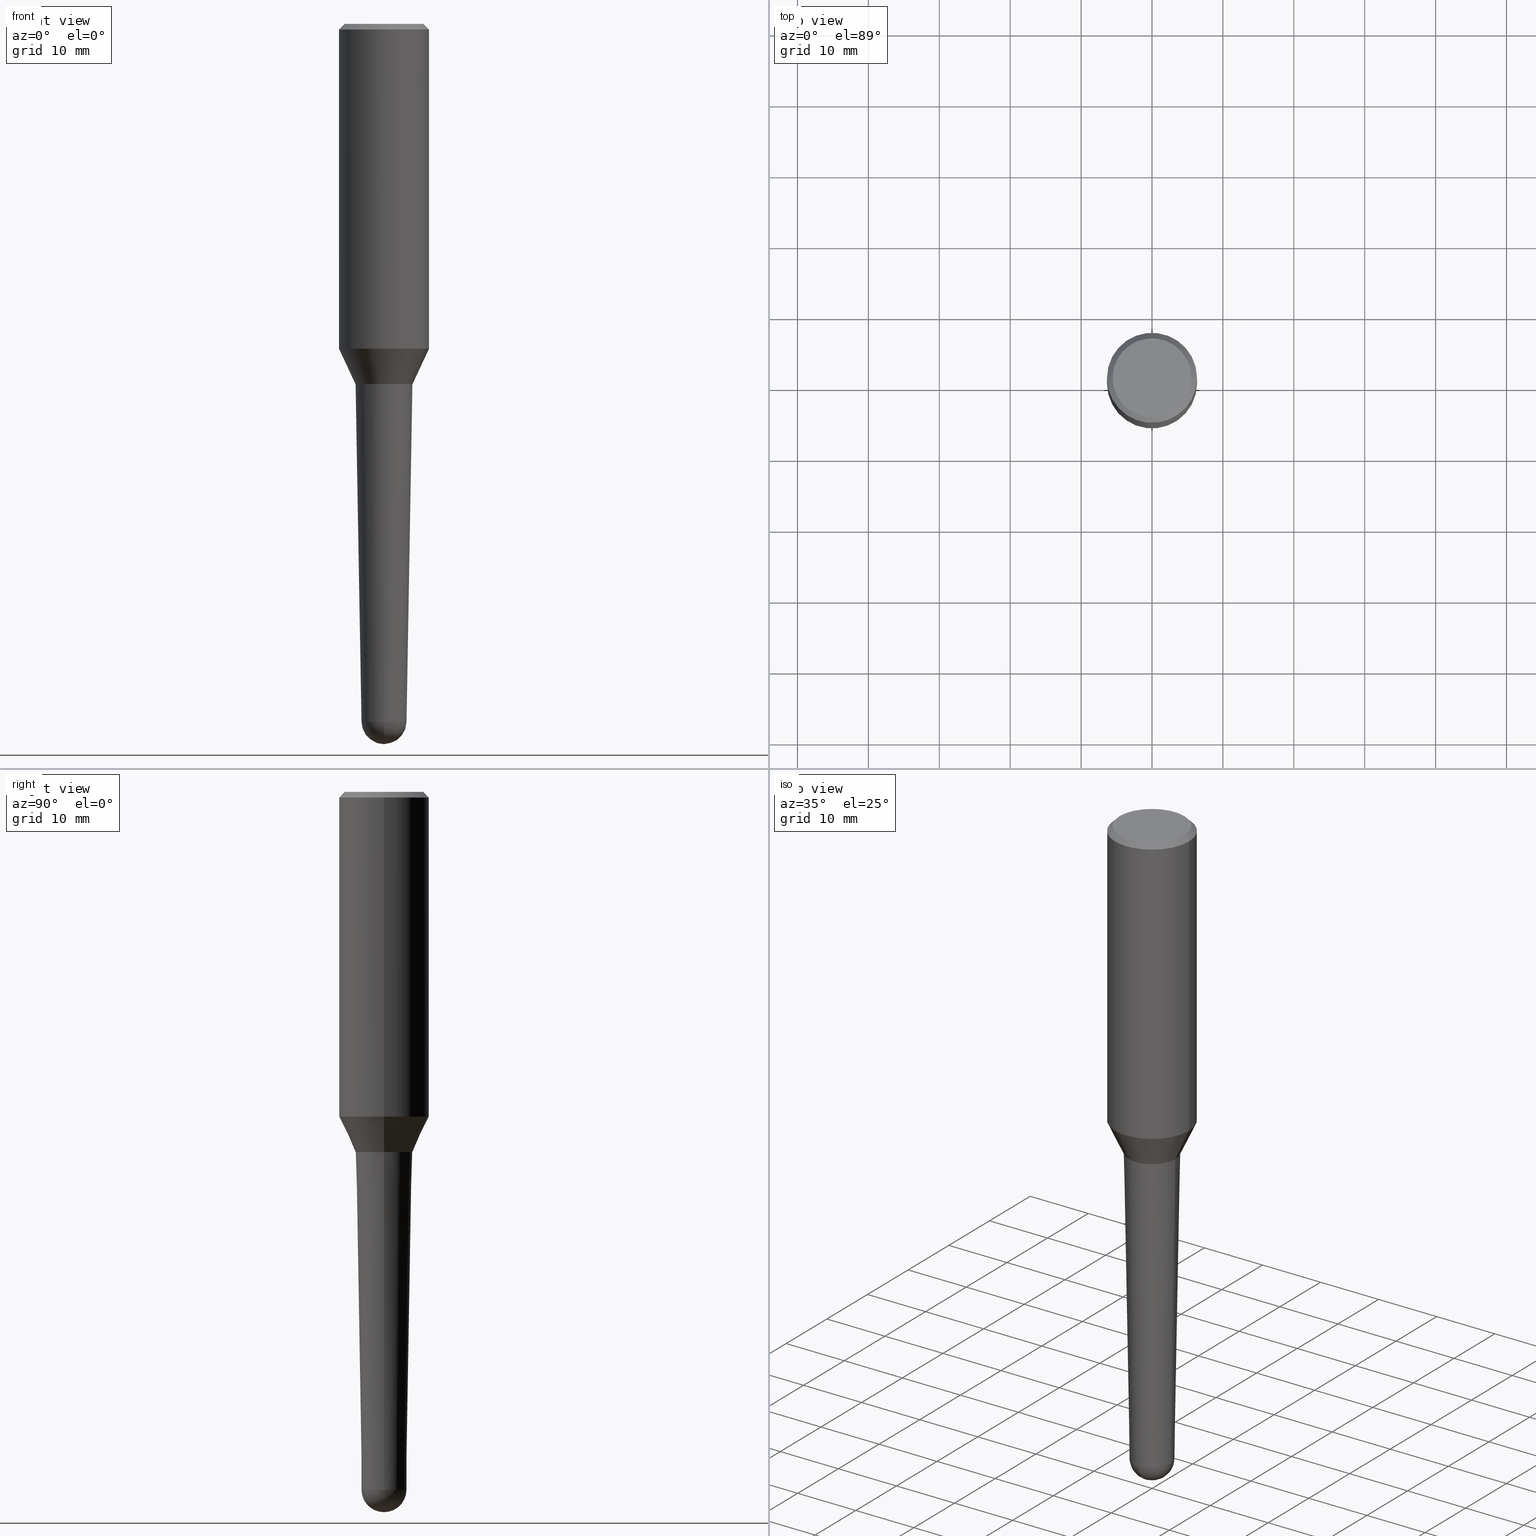
[diagram: canonical four-view strip — front | top / right | iso, engineering-drawing reading convention]
A machine part, canonical four-view strip (front | top / right | iso — engineering-drawing reading convention). The complete STEP part file that produces these views, byte-faithful:
ISO-10303-21;
HEADER;
FILE_DESCRIPTION (( 'STEP AP203' ),
    '1' );
FILE_NAME ('32431.STEP',
    '2024-03-04T15:23:43',
    ( '' ),
    ( '' ),
    'SwSTEP 2.0',
    'SolidWorks 2023',
    '' );
FILE_SCHEMA (( 'CONFIG_CONTROL_DESIGN' ));
ENDSEC;

DATA;
#1 = CALENDAR_DATE ( 2024, 4, 3 ) ;
#2 = DIRECTION ( 'NONE',  ( -2.445468806185136597E-29, 3.491481338843145583E-15, 1.000000000000000000 ) ) ;
#3 = AXIS2_PLACEMENT_3D ( 'NONE', #275, #316, #350 ) ;
#4 = PERSON_AND_ORGANIZATION_ROLE ( 'design_owner' ) ;
#5 = APPROVAL_PERSON_ORGANIZATION ( #67, #357, #293 ) ;
#6 = DIRECTION ( 'NONE',  ( 1.000000000000000000, -6.982962677686265133E-15, 0.000000000000000000 ) ) ;
#7 = ADVANCED_FACE ( 'NONE', ( #146 ), #367, .T. ) ;
#8 = DATE_TIME_ROLE ( 'creation_date' ) ;
#9 = DIRECTION ( 'NONE',  ( 1.000000000000000000, -6.982962677686266711E-15, 4.852736867747363965E-29 ) ) ;
#10 = ADVANCED_FACE ( 'NONE', ( #323 ), #60, .T. ) ;
#11 = CARTESIAN_POINT ( 'NONE',  ( -0.2500000000000000000, 1.636631877582718169E-15, -0.03125000000000005551 ) ) ;
#12 = CARTESIAN_POINT ( 'NONE',  ( 4.890937612370273194E-29, -6.982962677686291165E-15, -2.000000000000000000 ) ) ;
#13 = AXIS2_PLACEMENT_3D ( 'NONE', #308, #331, #366 ) ;
#14 = LOCAL_TIME ( 10, 23, 43.00000000000000000, #460 ) ;
#15 = LINE ( 'NONE', #437, #346 ) ;
#16 = DIRECTION ( 'NONE',  ( -2.445468806185136877E-29, 3.491481338843145188E-15, 1.000000000000000000 ) ) ;
#17 = VERTEX_POINT ( 'NONE', #27 ) ;
#18 = CARTESIAN_POINT ( 'NONE',  ( 9.770155035872819834E-29, -1.310851785081028701E-14, -3.875000000000000000 ) ) ;
#19 = AXIS2_PLACEMENT_3D ( 'NONE', #75, #150, #429 ) ;
#20 = LINE ( 'NONE', #415, #181 ) ;
#21 = ORIENTED_EDGE ( 'NONE', *, *, #89, .T. ) ;
#22 = ORIENTED_EDGE ( 'NONE', *, *, #344, .F. ) ;
#23 = AXIS2_PLACEMENT_3D ( 'NONE', #234, #444, #301 ) ;
#24 =( NAMED_UNIT ( * ) SI_UNIT ( $, .STERADIAN. ) SOLID_ANGLE_UNIT ( ) );
#25 = EDGE_CURVE ( 'NONE', #215, #176, #270, .T. ) ;
#26 = ORIENTED_EDGE ( 'NONE', *, *, #389, .F. ) ;
#27 = CARTESIAN_POINT ( 'NONE',  ( -0.1249809618945493112, -9.255582334932912889E-15, -3.877181550804660759 ) ) ;
#28 = CARTESIAN_POINT ( 'NONE',  ( -0.2500000000000000000, -1.427178414605507168E-15, -0.03125000000000005551 ) ) ;
#29 = PERSON_AND_ORGANIZATION ( #315, #217 ) ;
#30 = EDGE_LOOP ( 'NONE', ( #117, #183, #320, #225 ) ) ;
#31 = PERSON_AND_ORGANIZATION ( #315, #217 ) ;
#32 = ORIENTED_EDGE ( 'NONE', *, *, #276, .T. ) ;
#33 = ORIENTED_EDGE ( 'NONE', *, *, #37, .F. ) ;
#34 = UNCERTAINTY_MEASURE_WITH_UNIT (LENGTH_MEASURE( 1.000000000000000082E-05 ), #54, 'distance_accuracy_value', 'NONE');
#35 = CALENDAR_DATE ( 2024, 4, 3 ) ;
#36 = DIRECTION ( 'NONE',  ( 1.000000000000000000, -6.982962677686266711E-15, 0.000000000000000000 ) ) ;
#37 = EDGE_CURVE ( 'NONE', #55, #103, #79, .T. ) ;
#38 = AXIS2_PLACEMENT_3D ( 'NONE', #294, #325, #6 ) ;
#39 = APPROVAL_DATE_TIME ( #141, #74 ) ;
#40 = CARTESIAN_POINT ( 'NONE',  ( 7.642090019328565002E-31, -1.091087918388484967E-16, -0.03125000000000005551 ) ) ;
#41 = ADVANCED_FACE ( 'NONE', ( #111 ), #78, .F. ) ;
#42 = DIRECTION ( 'NONE',  ( 1.000000000000000000, -6.982962677686266711E-15, 0.000000000000000000 ) ) ;
#43 = CARTESIAN_POINT ( 'NONE',  ( -0.2500000000000001110, 1.776356839400253226E-15, 5.931196827434174486E-16 ) ) ;
#44 = CARTESIAN_POINT ( 'NONE',  ( 9.770155035872819834E-29, -1.310851785081028701E-14, -3.875000000000000000 ) ) ;
#45 = VECTOR ( 'NONE', #16, 39.37007874015748143 ) ;
#46 = CC_DESIGN_APPROVAL ( #74, ( #156 ) ) ;
#47 = CARTESIAN_POINT ( 'NONE',  ( 8.727373923310620192E-16, 0.1249809618945357664, -3.877181550804661203 ) ) ;
#48 = DIRECTION ( 'NONE',  ( -2.445468806185136597E-29, 3.491481338843145583E-15, 1.000000000000000000 ) ) ;
#49 = VERTEX_POINT ( 'NONE', #432 ) ;
#50 = ORIENTED_EDGE ( 'NONE', *, *, #302, .F. ) ;
#51 = CIRCLE ( 'NONE', #92, 0.2500000000000002220 ) ;
#52 = ORIENTED_EDGE ( 'NONE', *, *, #327, .T. ) ;
#53 = EDGE_CURVE ( 'NONE', #445, #373, #306, .T. ) ;
#54 =( CONVERSION_BASED_UNIT ( 'INCH', #99 ) LENGTH_UNIT ( ) NAMED_UNIT ( #266 ) );
#55 = VERTEX_POINT ( 'NONE', #187 ) ;
#56 = FACE_OUTER_BOUND ( 'NONE', #343, .T. ) ;
#57 = ORIENTED_EDGE ( 'NONE', *, *, #122, .F. ) ;
#58 = ORIENTED_EDGE ( 'NONE', *, *, #295, .T. ) ;
#59 = VERTEX_POINT ( 'NONE', #28 ) ;
#60 = CONICAL_SURFACE ( 'NONE', #119, 0.2500000000000000000, 0.7853981633974508325 ) ;
#61 = AXIS2_PLACEMENT_3D ( 'NONE', #12, #401, #88 ) ;
#62 = FACE_OUTER_BOUND ( 'NONE', #237, .T. ) ;
#63 = AXIS2_PLACEMENT_3D ( 'NONE', #310, #124, #91 ) ;
#64 = CARTESIAN_POINT ( 'NONE',  ( -0.1577472877458967193, -5.862100783749240719E-15, -2.000000000000000000 ) ) ;
#65 = FACE_OUTER_BOUND ( 'NONE', #142, .T. ) ;
#66 = ORIENTED_EDGE ( 'NONE', *, *, #122, .T. ) ;
#67 = PERSON_AND_ORGANIZATION ( #315, #217 ) ;
#68 = VERTEX_POINT ( 'NONE', #397 ) ;
#69 = AXIS2_PLACEMENT_3D ( 'NONE', #384, #173, #388 ) ;
#70 = PERSON_AND_ORGANIZATION ( #315, #217 ) ;
#71 = CC_DESIGN_PERSON_AND_ORGANIZATION_ASSIGNMENT ( #70, #394, ( #443 ) ) ;
#72 = ORIENTED_EDGE ( 'NONE', *, *, #418, .F. ) ;
#73 = PERSON_AND_ORGANIZATION_ROLE ( 'classification_officer' ) ;
#74 = APPROVAL ( #190, 'UNSPECIFIED' ) ;
#75 = CARTESIAN_POINT ( 'NONE',  ( 5.007997871596688174E-45, -7.150093703678297452E-31, -2.047868228345560340E-16 ) ) ;
#76 = APPROVAL_ROLE ( '' ) ;
#77 = EDGE_CURVE ( 'NONE', #17, #215, #362, .T. ) ;
#78 = PLANE ( 'NONE',  #19 ) ;
#79 = CIRCLE ( 'NONE', #127, 0.1587472877458968035 ) ;
#80 = VECTOR ( 'NONE', #290, 39.37007874015748143 ) ;
#81 = LOCAL_TIME ( 10, 23, 43.00000000000000000, #428 ) ;
#82 = DIRECTION ( 'NONE',  ( 1.000000000000000000, -6.982962677686264344E-15, 0.000000000000000000 ) ) ;
#83 = ADVANCED_FACE ( 'NONE', ( #417 ), #450, .F. ) ;
#84 = CARTESIAN_POINT ( 'NONE',  ( 0.2500000000000001110, -1.745740669421565297E-15, 5.931196827434418047E-16 ) ) ;
#85 = LINE ( 'NONE', #369, #207 ) ;
#86 = CIRCLE ( 'NONE', #100, 0.2500000000000000000 ) ;
#87 = FACE_OUTER_BOUND ( 'NONE', #105, .T. ) ;
#88 = DIRECTION ( 'NONE',  ( 1.000000000000000000, -6.982962677686265133E-15, 0.000000000000000000 ) ) ;
#89 = EDGE_CURVE ( 'NONE', #59, #196, #86, .T. ) ;
#90 = ORIENTED_EDGE ( 'NONE', *, *, #193, .T. ) ;
#91 = DIRECTION ( 'NONE',  ( 1.000000000000000000, 0.000000000000000000, 0.000000000000000000 ) ) ;
#92 = AXIS2_PLACEMENT_3D ( 'NONE', #194, #48, #121 ) ;
#93 = DIRECTION ( 'NONE',  ( 0.01745240643728343879, 3.369080066536508461E-15, 0.9998476951563912696 ) ) ;
#94 = PRODUCT ( '32431', '32431', '', ( #170 ) ) ;
#95 = ADVANCED_FACE ( 'NONE', ( #62 ), #299, .T. ) ;
#96 = DIRECTION ( 'NONE',  ( -2.445468806185136597E-29, 3.491481338843145583E-15, 1.000000000000000000 ) ) ;
#97 = DIRECTION ( 'NONE',  ( 1.000000000000000000, -6.982962677686266711E-15, 0.000000000000000000 ) ) ;
#98 = PRODUCT_DEFINITION_SHAPE ( 'NONE', 'NONE',  #156 ) ;
#99 = LENGTH_MEASURE_WITH_UNIT ( LENGTH_MEASURE( 0.02539999999999999897 ), #206 );
#100 = AXIS2_PLACEMENT_3D ( 'NONE', #40, #131, #281 ) ;
#101 = CARTESIAN_POINT ( 'NONE',  ( 4.889714877967179832E-29, -6.981216937016868873E-15, -1.999499999999999833 ) ) ;
#102 = CARTESIAN_POINT ( 'NONE',  ( 0.1249809618945493112, -1.440984442427236798E-14, -3.877181550804660759 ) ) ;
#103 = VERTEX_POINT ( 'NONE', #224 ) ;
#104 = ORIENTED_EDGE ( 'NONE', *, *, #115, .T. ) ;
#105 = EDGE_LOOP ( 'NONE', ( #240, #58, #235, #352, #128 ) ) ;
#106 = CONICAL_SURFACE ( 'NONE', #3, 0.1249809618945493112, 0.01745329251994322262 ) ;
#107 = CALENDAR_DATE ( 2024, 4, 3 ) ;
#108 = CARTESIAN_POINT ( 'NONE',  ( 9.770155035872819834E-29, -1.310851785081028701E-14, -3.875000000000000000 ) ) ;
#109 = EDGE_CURVE ( 'NONE', #103, #55, #405, .T. ) ;
#110 = LINE ( 'NONE', #212, #80 ) ;
#111 = FACE_OUTER_BOUND ( 'NONE', #241, .T. ) ;
#112 = VECTOR ( 'NONE', #192, 39.37007874015748854 ) ;
#113 = CIRCLE ( 'NONE', #165, 0.1249809618945493112 ) ;
#114 = DIRECTION ( 'NONE',  ( -2.445468806185136597E-29, 3.491481338843145583E-15, 1.000000000000000000 ) ) ;
#115 = EDGE_CURVE ( 'NONE', #252, #196, #110, .T. ) ;
#116 = DIRECTION ( 'NONE',  ( -0.4226182617406884501, 6.167240084480778447E-15, 0.9063077870366550437 ) ) ;
#117 = ORIENTED_EDGE ( 'NONE', *, *, #193, .F. ) ;
#118 = CARTESIAN_POINT ( 'NONE',  ( 0.2500000000000000000, -1.854849461260415384E-15, -0.03125000000000005551 ) ) ;
#119 = AXIS2_PLACEMENT_3D ( 'NONE', #228, #351, #360 ) ;
#120 = AXIS2_PLACEMENT_3D ( 'NONE', #44, #305, #195 ) ;
#121 = DIRECTION ( 'NONE',  ( 1.000000000000000000, -6.982962677686268288E-15, 0.000000000000000000 ) ) ;
#122 = EDGE_CURVE ( 'NONE', #49, #215, #368, .T. ) ;
#123 = LINE ( 'NONE', #11, #145 ) ;
#124 = DIRECTION ( 'NONE',  ( 0.000000000000000000, 0.000000000000000000, 1.000000000000000000 ) ) ;
#125 = ORIENTED_EDGE ( 'NONE', *, *, #379, .T. ) ;
#126 = CLOSED_SHELL ( 'NONE', ( #218, #178, #332, #424, #371 ) ) ;
#127 = AXIS2_PLACEMENT_3D ( 'NONE', #101, #2, #364 ) ;
#128 = ORIENTED_EDGE ( 'NONE', *, *, #440, .T. ) ;
#129 = APPROVAL_PERSON_ORGANIZATION ( #296, #74, #221 ) ;
#130 =( NAMED_UNIT ( * ) PLANE_ANGLE_UNIT ( ) SI_UNIT ( $, .RADIAN. ) );
#131 = DIRECTION ( 'NONE',  ( -2.445468806185136597E-29, 3.491481338843145583E-15, 1.000000000000000000 ) ) ;
#132 = EDGE_LOOP ( 'NONE', ( #236, #372, #52, #136 ) ) ;
#133 = FACE_OUTER_BOUND ( 'NONE', #339, .T. ) ;
#134 = DIRECTION ( 'NONE',  ( -2.445468806185136597E-29, 3.491481338843145583E-15, 1.000000000000000000 ) ) ;
#135 = ORIENTED_EDGE ( 'NONE', *, *, #309, .T. ) ;
#136 = ORIENTED_EDGE ( 'NONE', *, *, #53, .F. ) ;
#137 = AXIS2_PLACEMENT_3D ( 'NONE', #108, #349, #259 ) ;
#138 = LOCAL_TIME ( 10, 23, 43.00000000000000000, #359 ) ;
#139 = EDGE_CURVE ( 'NONE', #347, #354, #448, .T. ) ;
#140 = APPROVAL ( #328, 'UNSPECIFIED' ) ;
#141 = DATE_AND_TIME ( #143, #363 ) ;
#142 = EDGE_LOOP ( 'NONE', ( #273, #90, #456, #204 ) ) ;
#143 = CALENDAR_DATE ( 2024, 4, 3 ) ;
#144 = DIRECTION ( 'NONE',  ( -2.438088387897960049E-29, 3.491481338843145188E-15, 1.000000000000000000 ) ) ;
#145 = VECTOR ( 'NONE', #151, 39.37007874015748143 ) ;
#146 = FACE_OUTER_BOUND ( 'NONE', #449, .T. ) ;
#147 = DATE_TIME_ROLE ( 'classification_date' ) ;
#148 = CARTESIAN_POINT ( 'NONE',  ( -0.2187500000000001943, 1.582077481663294407E-15, -4.095736456691228655E-16 ) ) ;
#149 = PERSON_AND_ORGANIZATION ( #315, #217 ) ;
#150 = DIRECTION ( 'NONE',  ( 2.438088387897960049E-29, -3.491481338843145188E-15, -1.000000000000000000 ) ) ;
#151 = DIRECTION ( 'NONE',  ( -0.7071067811865493491, 2.468850131082275993E-15, -0.7071067811865457964 ) ) ;
#152 = AXIS2_PLACEMENT_3D ( 'NONE', #157, #114, #42 ) ;
#153 =( GEOMETRIC_REPRESENTATION_CONTEXT ( 3 ) GLOBAL_UNCERTAINTY_ASSIGNED_CONTEXT ( ( #34 ) ) GLOBAL_UNIT_ASSIGNED_CONTEXT ( ( #54, #130, #24 ) ) REPRESENTATION_CONTEXT ( 'NONE', 'WORKASPACE' ) );
#154 = CARTESIAN_POINT ( 'NONE',  ( 1.001599574319337510E-44, -1.430018740735659315E-30, -4.095736456691120187E-16 ) ) ;
#155 = DIRECTION ( 'NONE',  ( 1.000000000000000000, -6.982962677686265133E-15, 0.000000000000000000 ) ) ;
#156 = PRODUCT_DEFINITION ( 'UNKNOWN', '', #443, #184 ) ;
#157 = CARTESIAN_POINT ( 'NONE',  ( 9.481526538409310003E-29, -1.353710703194140102E-14, -3.877181550804660759 ) ) ;
#158 = EDGE_LOOP ( 'NONE', ( #22, #66, #307, #72 ) ) ;
#159 = EDGE_CURVE ( 'NONE', #196, #59, #277, .T. ) ;
#160 = ORIENTED_EDGE ( 'NONE', *, *, #309, .F. ) ;
#161 = ORIENTED_EDGE ( 'NONE', *, *, #25, .F. ) ;
#162 = VERTEX_POINT ( 'NONE', #148 ) ;
#163 = AXIS2_PLACEMENT_3D ( 'NONE', #399, #421, #82 ) ;
#164 = DIRECTION ( 'NONE',  ( 1.000000000000000000, -6.982962677686265922E-15, 4.883557194083112340E-29 ) ) ;
#165 = AXIS2_PLACEMENT_3D ( 'NONE', #311, #205, #382 ) ;
#166 = ORIENTED_EDGE ( 'NONE', *, *, #159, .T. ) ;
#167 = APPLICATION_CONTEXT ( 'configuration controlled 3d designs of mechanical parts and assemblies' ) ;
#168 = ADVANCED_FACE ( 'NONE', ( #65 ), #329, .T. ) ;
#169 = CARTESIAN_POINT ( 'NONE',  ( 1.001599574319337510E-44, -1.430018740735659315E-30, -4.095736456691120187E-16 ) ) ;
#170 = MECHANICAL_CONTEXT ( 'NONE', #396, 'mechanical' ) ;
#171 = AXIS2_PLACEMENT_3D ( 'NONE', #154, #274, #403 ) ;
#172 = ORIENTED_EDGE ( 'NONE', *, *, #77, .T. ) ;
#173 = DIRECTION ( 'NONE',  ( -2.445468806185136597E-29, 3.491481338843145583E-15, 1.000000000000000000 ) ) ;
#174 = CARTESIAN_POINT ( 'NONE',  ( 0.2500000000000002220, -8.043702385594237575E-15, -1.803807927055801397 ) ) ;
#175 = CARTESIAN_POINT ( 'NONE',  ( 4.411156017964436703E-29, -6.297961716172668531E-15, -1.803807927055801397 ) ) ;
#176 = VERTEX_POINT ( 'NONE', #297 ) ;
#177 = DIRECTION ( 'NONE',  ( -2.445468806185136597E-29, 3.491481338843145583E-15, 1.000000000000000000 ) ) ;
#178 = ADVANCED_FACE ( 'NONE', ( #453 ), #197, .T. ) ;
#179 = ORIENTED_EDGE ( 'NONE', *, *, #344, .T. ) ;
#180 = ORIENTED_EDGE ( 'NONE', *, *, #389, .T. ) ;
#181 = VECTOR ( 'NONE', #246, 39.37007874015748854 ) ;
#182 = DATE_AND_TIME ( #253, #14 ) ;
#183 = ORIENTED_EDGE ( 'NONE', *, *, #53, .T. ) ;
#184 = DESIGN_CONTEXT ( 'detailed design', #167, 'design' ) ;
#185 = ADVANCED_FACE ( 'NONE', ( #336 ), #340, .T. ) ;
#186 = APPLICATION_PROTOCOL_DEFINITION ( 'international standard', 'config_control_design', 1994, #167 ) ;
#187 = CARTESIAN_POINT ( 'NONE',  ( 0.1587472877458968035, -8.089743322530388676E-15, -1.999499999999999833 ) ) ;
#188 = AXIS2_PLACEMENT_3D ( 'NONE', #262, #395, #36 ) ;
#189 = CIRCLE ( 'NONE', #334, 0.1249809618945493112 ) ;
#190 = APPROVAL_STATUS ( 'not_yet_approved' ) ;
#191 = CARTESIAN_POINT ( 'NONE',  ( 7.642090019328565002E-31, -1.091087918388484967E-16, -0.03125000000000005551 ) ) ;
#192 = DIRECTION ( 'NONE',  ( 0.4226182617406884501, 2.132291770428352764E-16, 0.9063077870366550437 ) ) ;
#193 = EDGE_CURVE ( 'NONE', #445, #59, #233, .T. ) ;
#194 = CARTESIAN_POINT ( 'NONE',  ( 4.411156017964436703E-29, -6.297961716172668531E-15, -1.803807927055801397 ) ) ;
#195 = DIRECTION ( 'NONE',  ( 6.982962677686265922E-15, 1.000000000000000000, -4.370956789862822727E-15 ) ) ;
#196 = VERTEX_POINT ( 'NONE', #118 ) ;
#197 = SPHERICAL_SURFACE ( 'NONE', #422, 0.1249999999999999445 ) ;
#198 = CC_DESIGN_PERSON_AND_ORGANIZATION_ASSIGNMENT ( #258, #4, ( #94 ) ) ;
#199 = DIRECTION ( 'NONE',  ( 6.982962677686265922E-15, 1.000000000000000000, -4.370956789862822727E-15 ) ) ;
#200 = ORIENTED_EDGE ( 'NONE', *, *, #423, .T. ) ;
#201 = ORIENTED_EDGE ( 'NONE', *, *, #440, .F. ) ;
#202 = CIRCLE ( 'NONE', #457, 0.1577472877458967193 ) ;
#203 = DIRECTION ( 'NONE',  ( -1.000000000000000000, 6.982962677686265922E-15, -4.876176775795935793E-29 ) ) ;
#204 = ORIENTED_EDGE ( 'NONE', *, *, #211, .F. ) ;
#205 = DIRECTION ( 'NONE',  ( -2.445468806185136597E-29, 3.491481338843145583E-15, 1.000000000000000000 ) ) ;
#206 =( LENGTH_UNIT ( ) NAMED_UNIT ( * ) SI_UNIT ( $, .METRE. ) );
#207 = VECTOR ( 'NONE', #370, 39.37007874015748143 ) ;
#208 = AXIS2_PLACEMENT_3D ( 'NONE', #286, #345, #419 ) ;
#209 = DIRECTION ( 'NONE',  ( 1.000000000000000000, -6.982962677686268288E-15, 0.000000000000000000 ) ) ;
#210 = DIRECTION ( 'NONE',  ( -2.445468806185136597E-29, 3.491481338843145583E-15, 1.000000000000000000 ) ) ;
#211 = EDGE_CURVE ( 'NONE', #373, #196, #408, .T. ) ;
#212 = CARTESIAN_POINT ( 'NONE',  ( 0.2500000000000000000, -1.824233291281731597E-15, -0.03125000000000005551 ) ) ;
#213 = EDGE_LOOP ( 'NONE', ( #57, #179, #201, #161 ) ) ;
#214 = PERSON_AND_ORGANIZATION_ROLE ( 'creator' ) ;
#215 = VERTEX_POINT ( 'NONE', #269 ) ;
#216 = APPROVAL_STATUS ( 'not_yet_approved' ) ;
#217 = ORGANIZATION ( 'UNSPECIFIED', 'UNSPECIFIED', '' ) ;
#218 = ADVANCED_FACE ( 'NONE', ( #87 ), #250, .T. ) ;
#219 = DATE_AND_TIME ( #1, #81 ) ;
#220 = ORIENTED_EDGE ( 'NONE', *, *, #25, .T. ) ;
#221 = APPROVAL_ROLE ( '' ) ;
#222 = DIRECTION ( 'NONE',  ( -2.445468806185136597E-29, 3.491481338843145583E-15, 1.000000000000000000 ) ) ;
#223 = APPROVAL_DATE_TIME ( #219, #357 ) ;
#224 = CARTESIAN_POINT ( 'NONE',  ( -0.1587472877458968035, -5.853249615722215052E-15, -1.999499999999999833 ) ) ;
#225 = ORIENTED_EDGE ( 'NONE', *, *, #89, .F. ) ;
#226 = CIRCLE ( 'NONE', #257, 0.1582472877458966365 ) ;
#227 = CC_DESIGN_APPROVAL ( #357, ( #412 ) ) ;
#228 = CARTESIAN_POINT ( 'NONE',  ( 7.642090019328565002E-31, -1.091087918388484967E-16, -0.03125000000000005551 ) ) ;
#229 = ADVANCED_FACE ( 'NONE', ( #231 ), #291, .T. ) ;
#230 = DIRECTION ( 'NONE',  ( -2.445468806185136877E-29, 3.491481338843145188E-15, 1.000000000000000000 ) ) ;
#231 = FACE_OUTER_BOUND ( 'NONE', #387, .T. ) ;
#232 = AXIS2_PLACEMENT_3D ( 'NONE', #314, #134, #9 ) ;
#233 = LINE ( 'NONE', #43, #45 ) ;
#234 = CARTESIAN_POINT ( 'NONE',  ( 4.889714877967179832E-29, -6.981216937016868873E-15, -1.999499999999999833 ) ) ;
#235 = ORIENTED_EDGE ( 'NONE', *, *, #139, .F. ) ;
#236 = ORIENTED_EDGE ( 'NONE', *, *, #276, .F. ) ;
#237 = EDGE_LOOP ( 'NONE', ( #135, #200, #33, #420 ) ) ;
#238 = CARTESIAN_POINT ( 'NONE',  ( 0.1587472877458968035, -8.089743322530388676E-15, -1.999499999999999833 ) ) ;
#239 = ORIENTED_EDGE ( 'NONE', *, *, #282, .F. ) ;
#240 = ORIENTED_EDGE ( 'NONE', *, *, #418, .T. ) ;
#241 = EDGE_LOOP ( 'NONE', ( #268, #342 ) ) ;
#242 = VECTOR ( 'NONE', #230, 39.37007874015748143 ) ;
#243 = APPLICATION_PROTOCOL_DEFINITION ( 'international standard', 'config_control_design', 1994, #396 ) ;
#244 = DIRECTION ( 'NONE',  ( 1.000000000000000000, -6.982962677686266711E-15, 0.000000000000000000 ) ) ;
#245 = VERTEX_POINT ( 'NONE', #47 ) ;
#246 = DIRECTION ( 'NONE',  ( -0.7071067811865474617, 7.493145998870352582E-15, 0.7071067811865474617 ) ) ;
#247 = DIRECTION ( 'NONE',  ( -2.445468806185136597E-29, 3.491481338843145583E-15, 1.000000000000000000 ) ) ;
#248 = EDGE_CURVE ( 'NONE', #373, #445, #51, .T. ) ;
#249 = CARTESIAN_POINT ( 'NONE',  ( 9.481526538409310003E-29, -1.353710703194140102E-14, -3.877181550804660759 ) ) ;
#250 = CONICAL_SURFACE ( 'NONE', #152, 0.1249809618945493112, 0.01745329251994322262 ) ;
#251 = CARTESIAN_POINT ( 'NONE',  ( 4.890937612370273194E-29, -6.982962677686291165E-15, -2.000000000000000000 ) ) ;
#252 = VERTEX_POINT ( 'NONE', #407 ) ;
#253 = CALENDAR_DATE ( 2024, 4, 3 ) ;
#254 = EDGE_LOOP ( 'NONE', ( #378, #104, #166, #452 ) ) ;
#255 = EDGE_CURVE ( 'NONE', #162, #59, #123, .T. ) ;
#256 = CLOSED_SHELL ( 'NONE', ( #10, #168, #229, #95, #83, #454, #185, #337, #7, #41 ) ) ;
#257 = AXIS2_PLACEMENT_3D ( 'NONE', #298, #333, #155 ) ;
#258 = PERSON_AND_ORGANIZATION ( #315, #217 ) ;
#259 = DIRECTION ( 'NONE',  ( -7.105427357601001070E-15, -1.000000000000000000, 0.000000000000000000 ) ) ;
#260 = COORDINATED_UNIVERSAL_TIME_OFFSET ( 5, 0, .BEHIND. ) ;
#261 = CC_DESIGN_DATE_AND_TIME_ASSIGNMENT ( #425, #8, ( #156 ) ) ;
#262 = CARTESIAN_POINT ( 'NONE',  ( 9.481526538409310003E-29, -1.353710703194140102E-14, -3.877181550804660759 ) ) ;
#263 = CARTESIAN_POINT ( 'NONE',  ( 4.889714877967179832E-29, -6.981216937016868873E-15, -1.999499999999999833 ) ) ;
#264 = AXIS2_PLACEMENT_3D ( 'NONE', #175, #247, #209 ) ;
#265 = DIRECTION ( 'NONE',  ( -1.000000000000000000, 6.982962677686265922E-15, -4.883557194083112340E-29 ) ) ;
#266 = DIMENSIONAL_EXPONENTS ( 1.000000000000000000, 0.000000000000000000, 0.000000000000000000, 0.000000000000000000, 0.000000000000000000, 0.000000000000000000, 0.000000000000000000 ) ;
#267 = LINE ( 'NONE', #238, #112 ) ;
#268 = ORIENTED_EDGE ( 'NONE', *, *, #282, .T. ) ;
#269 = CARTESIAN_POINT ( 'NONE',  ( -8.880431458247209991E-16, -0.1249809618945623979, -3.877181550804660315 ) ) ;
#270 = CIRCLE ( 'NONE', #188, 0.1249809618945493112 ) ;
#271 = AXIS2_PLACEMENT_3D ( 'NONE', #439, #272, #338 ) ;
#272 = DIRECTION ( 'NONE',  ( -2.445468806185136597E-29, 3.491481338843145583E-15, 1.000000000000000000 ) ) ;
#273 = ORIENTED_EDGE ( 'NONE', *, *, #248, .T. ) ;
#274 = DIRECTION ( 'NONE',  ( -2.445468806185136597E-29, 3.491481338843145583E-15, 1.000000000000000000 ) ) ;
#275 = CARTESIAN_POINT ( 'NONE',  ( 9.481526538409310003E-29, -1.353710703194140102E-14, -3.877181550804660759 ) ) ;
#276 = EDGE_CURVE ( 'NONE', #103, #445, #15, .T. ) ;
#277 = CIRCLE ( 'NONE', #426, 0.2500000000000000000 ) ;
#278 = CARTESIAN_POINT ( 'NONE',  ( 4.890937612370273194E-29, -6.982962677686291165E-15, -2.000000000000000000 ) ) ;
#279 = DIRECTION ( 'NONE',  ( 1.000000000000000000, -6.982962677686266711E-15, 4.880466792705917960E-29 ) ) ;
#280 = ORIENTED_EDGE ( 'NONE', *, *, #327, .F. ) ;
#281 = DIRECTION ( 'NONE',  ( 1.000000000000000000, -6.982962677686266711E-15, 0.000000000000000000 ) ) ;
#282 = EDGE_CURVE ( 'NONE', #162, #252, #319, .T. ) ;
#283 = ORIENTED_EDGE ( 'NONE', *, *, #248, .F. ) ;
#284 = DIRECTION ( 'NONE',  ( 1.000000000000000000, -6.982962677686264344E-15, 0.000000000000000000 ) ) ;
#285 = DIRECTION ( 'NONE',  ( 1.000000000000000000, -6.982962677686265922E-15, 4.876176775795935793E-29 ) ) ;
#286 = CARTESIAN_POINT ( 'NONE',  ( 4.890937612370273194E-29, -6.982962677686291165E-15, -2.000000000000000000 ) ) ;
#287 = CIRCLE ( 'NONE', #411, 0.1249999999999999445 ) ;
#288 = MANIFOLD_SOLID_BREP ( 'Body-Move/Copy2[2]', #256 ) ;
#289 = PERSON_AND_ORGANIZATION_ROLE ( 'creator' ) ;
#290 = DIRECTION ( 'NONE',  ( 0.7071067811865493491, -7.319954787623262356E-15, -0.7071067811865457964 ) ) ;
#291 = CONICAL_SURFACE ( 'NONE', #13, 0.1587472877458968035, 0.4363323129985702820 ) ;
#292 = CC_DESIGN_PERSON_AND_ORGANIZATION_ASSIGNMENT ( #31, #289, ( #156 ) ) ;
#293 = APPROVAL_ROLE ( '' ) ;
#294 = CARTESIAN_POINT ( 'NONE',  ( 4.890937612370273194E-29, -6.982962677686291165E-15, -2.000000000000000000 ) ) ;
#295 = EDGE_CURVE ( 'NONE', #17, #354, #85, .T. ) ;
#296 = PERSON_AND_ORGANIZATION ( #315, #217 ) ;
#297 = CARTESIAN_POINT ( 'NONE',  ( 0.1249809618945493112, -1.124717526239724726E-14, -3.877181550804660759 ) ) ;
#298 = CARTESIAN_POINT ( 'NONE',  ( 4.890937612370273194E-29, -6.982962677686291165E-15, -2.000000000000000000 ) ) ;
#299 = CONICAL_SURFACE ( 'NONE', #38, 0.1582472877458966365, 0.7853981633974482790 ) ;
#300 = CC_DESIGN_SECURITY_CLASSIFICATION ( #412, ( #443 ) ) ;
#301 = DIRECTION ( 'NONE',  ( 1.000000000000000000, -6.982962677686266711E-15, 0.000000000000000000 ) ) ;
#302 = EDGE_CURVE ( 'NONE', #330, #68, #226, .T. ) ;
#303 = CYLINDRICAL_SURFACE ( 'NONE', #271, 0.2500000000000001110 ) ;
#304 = CC_DESIGN_PERSON_AND_ORGANIZATION_ASSIGNMENT ( #149, #214, ( #443 ) ) ;
#305 = DIRECTION ( 'NONE',  ( -1.000000000000000000, 6.982962677686265922E-15, -4.883557194083112340E-29 ) ) ;
#306 = CIRCLE ( 'NONE', #264, 0.2500000000000002220 ) ;
#307 = ORIENTED_EDGE ( 'NONE', *, *, #77, .F. ) ;
#308 = CARTESIAN_POINT ( 'NONE',  ( 4.889714877967179832E-29, -6.981216937016868873E-15, -1.999499999999999833 ) ) ;
#309 = EDGE_CURVE ( 'NONE', #68, #330, #326, .T. ) ;
#310 = CARTESIAN_POINT ( 'NONE',  ( 0.000000000000000000, 0.000000000000000000, 0.000000000000000000 ) ) ;
#311 = CARTESIAN_POINT ( 'NONE',  ( 9.481526538409310003E-29, -1.353710703194140102E-14, -3.877181550804660759 ) ) ;
#312 = DIRECTION ( 'NONE',  ( -1.000000000000000000, 6.982962677686266711E-15, 0.000000000000000000 ) ) ;
#313 = FACE_OUTER_BOUND ( 'NONE', #381, .T. ) ;
#314 = CARTESIAN_POINT ( 'NONE',  ( -1.450455682483482035E-44, 2.070866303999251778E-30, 5.931196827434296760E-16 ) ) ;
#315 = PERSON ( 'UNSPECIFIED', 'UNSPECIFIED', 'UNSPECIFIED', ('UNSPECIFIED'), ('UNSPECIFIED'), ('UNSPECIFIED') ) ;
#316 = DIRECTION ( 'NONE',  ( -2.445468806185136597E-29, 3.491481338843145583E-15, 1.000000000000000000 ) ) ;
#317 = CC_DESIGN_DATE_AND_TIME_ASSIGNMENT ( #182, #147, ( #412 ) ) ;
#318 = ORIENTED_EDGE ( 'NONE', *, *, #115, .F. ) ;
#319 = CIRCLE ( 'NONE', #171, 0.2187500000000001943 ) ;
#320 = ORIENTED_EDGE ( 'NONE', *, *, #211, .T. ) ;
#321 = PRODUCT_RELATED_PRODUCT_CATEGORY ( 'detail', '', ( #94 ) ) ;
#322 = SHAPE_DEFINITION_REPRESENTATION ( #98, #398 ) ;
#323 = FACE_OUTER_BOUND ( 'NONE', #254, .T. ) ;
#324 = SECURITY_CLASSIFICATION_LEVEL ( 'unclassified' ) ;
#325 = DIRECTION ( 'NONE',  ( -2.445468806185136597E-29, 3.491481338843145583E-15, 1.000000000000000000 ) ) ;
#326 = CIRCLE ( 'NONE', #61, 0.1582472877458966365 ) ;
#327 = EDGE_CURVE ( 'NONE', #55, #373, #267, .T. ) ;
#328 = APPROVAL_STATUS ( 'not_yet_approved' ) ;
#329 = CYLINDRICAL_SURFACE ( 'NONE', #232, 0.2500000000000001110 ) ;
#330 = VERTEX_POINT ( 'NONE', #434 ) ;
#331 = DIRECTION ( 'NONE',  ( -2.445468806185136597E-29, 3.491481338843145583E-15, 1.000000000000000000 ) ) ;
#332 = ADVANCED_FACE ( 'NONE', ( #402 ), #365, .T. ) ;
#333 = DIRECTION ( 'NONE',  ( -2.445468806185136597E-29, 3.491481338843145583E-15, 1.000000000000000000 ) ) ;
#334 = AXIS2_PLACEMENT_3D ( 'NONE', #249, #210, #244 ) ;
#335 = FACE_OUTER_BOUND ( 'NONE', #30, .T. ) ;
#336 = FACE_OUTER_BOUND ( 'NONE', #132, .T. ) ;
#337 = ADVANCED_FACE ( 'NONE', ( #335 ), #303, .T. ) ;
#338 = DIRECTION ( 'NONE',  ( 1.000000000000000000, -6.982962677686266711E-15, 4.852736867747363965E-29 ) ) ;
#339 = EDGE_LOOP ( 'NONE', ( #374, #400, #458, #383 ) ) ;
#340 = CONICAL_SURFACE ( 'NONE', #23, 0.1587472877458968035, 0.4363323129985702820 ) ;
#341 = DIRECTION ( 'NONE',  ( 6.982962677686265922E-15, 1.000000000000000000, 0.000000000000000000 ) ) ;
#342 = ORIENTED_EDGE ( 'NONE', *, *, #433, .T. ) ;
#343 = EDGE_LOOP ( 'NONE', ( #391, #172, #220, #125, #26 ) ) ;
#344 = EDGE_CURVE ( 'NONE', #49, #245, #287, .T. ) ;
#345 = DIRECTION ( 'NONE',  ( -2.445468806185136597E-29, 3.491481338843145583E-15, 1.000000000000000000 ) ) ;
#346 = VECTOR ( 'NONE', #116, 39.37007874015748854 ) ;
#347 = VERTEX_POINT ( 'NONE', #386 ) ;
#348 = ORIENTED_EDGE ( 'NONE', *, *, #37, .T. ) ;
#349 = DIRECTION ( 'NONE',  ( -1.000000000000000000, 7.105427357601001070E-15, -4.926315508542082329E-29 ) ) ;
#350 = DIRECTION ( 'NONE',  ( 1.000000000000000000, -6.982962677686266711E-15, 0.000000000000000000 ) ) ;
#351 = DIRECTION ( 'NONE',  ( 2.445468806185136597E-29, -3.491481338843145583E-15, -1.000000000000000000 ) ) ;
#352 = ORIENTED_EDGE ( 'NONE', *, *, #379, .F. ) ;
#353 = DATE_AND_TIME ( #35, #436 ) ;
#354 = VERTEX_POINT ( 'NONE', #64 ) ;
#355 = VECTOR ( 'NONE', #93, 39.37007874015748143 ) ;
#356 = VECTOR ( 'NONE', #410, 39.37007874015748854 ) ;
#357 = APPROVAL ( #216, 'UNSPECIFIED' ) ;
#358 = EDGE_LOOP ( 'NONE', ( #160, #50 ) ) ;
#359 = COORDINATED_UNIVERSAL_TIME_OFFSET ( 5, 0, .BEHIND. ) ;
#360 = DIRECTION ( 'NONE',  ( -1.000000000000000000, 6.982962677686266711E-15, 0.000000000000000000 ) ) ;
#361 = DIRECTION ( 'NONE',  ( -2.445468806185136597E-29, 3.491481338843145583E-15, 1.000000000000000000 ) ) ;
#362 = CIRCLE ( 'NONE', #69, 0.1249809618945493112 ) ;
#363 = LOCAL_TIME ( 10, 23, 43.00000000000000000, #431 ) ;
#364 = DIRECTION ( 'NONE',  ( 1.000000000000000000, -6.982962677686266711E-15, 0.000000000000000000 ) ) ;
#365 = SPHERICAL_SURFACE ( 'NONE', #120, 0.1249999999999999445 ) ;
#366 = DIRECTION ( 'NONE',  ( 1.000000000000000000, -6.982962677686266711E-15, 0.000000000000000000 ) ) ;
#367 = CONICAL_SURFACE ( 'NONE', #404, 0.2500000000000000000, 0.7853981633974508325 ) ;
#368 = CIRCLE ( 'NONE', #137, 0.1249999999999999445 ) ;
#369 = CARTESIAN_POINT ( 'NONE',  ( -0.1249809618945493112, -1.264906388611658269E-14, -3.877181550804660759 ) ) ;
#370 = DIRECTION ( 'NONE',  ( -0.01745240643728343879, 3.614956375479315570E-15, 0.9998476951563912696 ) ) ;
#371 = ADVANCED_FACE ( 'NONE', ( #313 ), #413, .F. ) ;
#372 = ORIENTED_EDGE ( 'NONE', *, *, #109, .T. ) ;
#373 = VERTEX_POINT ( 'NONE', #174 ) ;
#374 = ORIENTED_EDGE ( 'NONE', *, *, #423, .F. ) ;
#375 = AXIS2_PLACEMENT_3D ( 'NONE', #263, #361, #427 ) ;
#376 = CONICAL_SURFACE ( 'NONE', #208, 0.1582472877458966365, 0.7853981633974482790 ) ;
#377 = CARTESIAN_POINT ( 'NONE',  ( 4.890937612370273194E-29, -6.982962677686291165E-15, -2.000000000000000000 ) ) ;
#378 = ORIENTED_EDGE ( 'NONE', *, *, #433, .F. ) ;
#379 = EDGE_CURVE ( 'NONE', #176, #347, #451, .T. ) ;
#380 = DIRECTION ( 'NONE',  ( 2.438088387897960049E-29, -3.491481338843145188E-15, -1.000000000000000000 ) ) ;
#381 = EDGE_LOOP ( 'NONE', ( #409, #180 ) ) ;
#382 = DIRECTION ( 'NONE',  ( 1.000000000000000000, -6.982962677686266711E-15, 0.000000000000000000 ) ) ;
#383 = ORIENTED_EDGE ( 'NONE', *, *, #109, .F. ) ;
#384 = CARTESIAN_POINT ( 'NONE',  ( 9.481526538409310003E-29, -1.353710703194140102E-14, -3.877181550804660759 ) ) ;
#385 = AXIS2_PLACEMENT_3D ( 'NONE', #278, #380, #203 ) ;
#386 = CARTESIAN_POINT ( 'NONE',  ( 0.1577472877458967193, -8.084506100522123376E-15, -2.000000000000000000 ) ) ;
#387 = EDGE_LOOP ( 'NONE', ( #348, #32, #283, #280 ) ) ;
#388 = DIRECTION ( 'NONE',  ( 1.000000000000000000, -6.982962677686266711E-15, 0.000000000000000000 ) ) ;
#389 = EDGE_CURVE ( 'NONE', #354, #347, #202, .T. ) ;
#390 = APPROVAL_DATE_TIME ( #353, #140 ) ;
#391 = ORIENTED_EDGE ( 'NONE', *, *, #295, .F. ) ;
#392 = PERSON_AND_ORGANIZATION ( #315, #217 ) ;
#393 = AXIS2_PLACEMENT_3D ( 'NONE', #251, #144, #285 ) ;
#394 = PERSON_AND_ORGANIZATION_ROLE ( 'design_supplier' ) ;
#395 = DIRECTION ( 'NONE',  ( -2.445468806185136597E-29, 3.491481338843145583E-15, 1.000000000000000000 ) ) ;
#396 = APPLICATION_CONTEXT ( 'configuration controlled 3d designs of mechanical parts and assemblies' ) ;
#397 = CARTESIAN_POINT ( 'NONE',  ( 0.1582472877458966365, -8.087997581860966383E-15, -2.000000000000000000 ) ) ;
#398 = ADVANCED_BREP_SHAPE_REPRESENTATION ( '32431', ( #438, #288, #63 ), #153 ) ;
#399 = CARTESIAN_POINT ( 'NONE',  ( 4.890937612370273194E-29, -6.982962677686291165E-15, -2.000000000000000000 ) ) ;
#400 = ORIENTED_EDGE ( 'NONE', *, *, #302, .T. ) ;
#401 = DIRECTION ( 'NONE',  ( -2.445468806185136597E-29, 3.491481338843145583E-15, 1.000000000000000000 ) ) ;
#402 = FACE_OUTER_BOUND ( 'NONE', #213, .T. ) ;
#403 = DIRECTION ( 'NONE',  ( 1.000000000000000000, -6.982962677686266711E-15, 4.880466792705917960E-29 ) ) ;
#404 = AXIS2_PLACEMENT_3D ( 'NONE', #430, #414, #312 ) ;
#405 = CIRCLE ( 'NONE', #375, 0.1587472877458968035 ) ;
#406 = CC_DESIGN_APPROVAL ( #140, ( #443 ) ) ;
#407 = CARTESIAN_POINT ( 'NONE',  ( 0.2187500000000001943, -1.662483614147128444E-15, -4.095736456691008267E-16 ) ) ;
#408 = LINE ( 'NONE', #84, #242 ) ;
#409 = ORIENTED_EDGE ( 'NONE', *, *, #139, .T. ) ;
#410 = DIRECTION ( 'NONE',  ( 0.7071067811865474617, -2.468850131082256666E-15, 0.7071067811865474617 ) ) ;
#411 = AXIS2_PLACEMENT_3D ( 'NONE', #18, #164, #341 ) ;
#412 = SECURITY_CLASSIFICATION ( '', '', #324 ) ;
#413 = PLANE ( 'NONE',  #385 ) ;
#414 = DIRECTION ( 'NONE',  ( 2.445468806185136597E-29, -3.491481338843145583E-15, -1.000000000000000000 ) ) ;
#415 = CARTESIAN_POINT ( 'NONE',  ( -0.1582472877458966365, -5.858548070070439031E-15, -2.000000000000000000 ) ) ;
#416 = CC_DESIGN_PERSON_AND_ORGANIZATION_ASSIGNMENT ( #392, #73, ( #412 ) ) ;
#417 = FACE_OUTER_BOUND ( 'NONE', #358, .T. ) ;
#418 = EDGE_CURVE ( 'NONE', #245, #17, #189, .T. ) ;
#419 = DIRECTION ( 'NONE',  ( 1.000000000000000000, -6.982962677686265133E-15, 0.000000000000000000 ) ) ;
#420 = ORIENTED_EDGE ( 'NONE', *, *, #462, .F. ) ;
#421 = DIRECTION ( 'NONE',  ( -2.445468806185136597E-29, 3.491481338843145583E-15, 1.000000000000000000 ) ) ;
#422 = AXIS2_PLACEMENT_3D ( 'NONE', #441, #265, #199 ) ;
#423 = EDGE_CURVE ( 'NONE', #330, #103, #20, .T. ) ;
#424 = ADVANCED_FACE ( 'NONE', ( #56 ), #106, .T. ) ;
#425 = DATE_AND_TIME ( #107, #138 ) ;
#426 = AXIS2_PLACEMENT_3D ( 'NONE', #191, #222, #97 ) ;
#427 = DIRECTION ( 'NONE',  ( 1.000000000000000000, -6.982962677686266711E-15, 0.000000000000000000 ) ) ;
#428 = COORDINATED_UNIVERSAL_TIME_OFFSET ( 5, 0, .BEHIND. ) ;
#429 = DIRECTION ( 'NONE',  ( -1.000000000000000000, 6.982962677686265922E-15, -4.876176775795935793E-29 ) ) ;
#430 = CARTESIAN_POINT ( 'NONE',  ( 7.642090019328565002E-31, -1.091087918388484967E-16, -0.03125000000000005551 ) ) ;
#431 = COORDINATED_UNIVERSAL_TIME_OFFSET ( 5, 0, .BEHIND. ) ;
#432 = CARTESIAN_POINT ( 'NONE',  ( 1.008118342595333351E-28, -1.353729897567100931E-14, -4.000000000000000000 ) ) ;
#433 = EDGE_CURVE ( 'NONE', #252, #162, #435, .T. ) ;
#434 = CARTESIAN_POINT ( 'NONE',  ( -0.1582472877458966365, -5.855898842896327041E-15, -2.000000000000000000 ) ) ;
#435 = CIRCLE ( 'NONE', #442, 0.2187500000000001943 ) ;
#436 = LOCAL_TIME ( 10, 23, 43.00000000000000000, #260 ) ;
#437 = CARTESIAN_POINT ( 'NONE',  ( -0.1587472877458968035, -5.853249615722215052E-15, -1.999499999999999833 ) ) ;
#438 = MANIFOLD_SOLID_BREP ( 'Body-Move/Copy2[1]', #126 ) ;
#439 = CARTESIAN_POINT ( 'NONE',  ( -1.450455682483482035E-44, 2.070866303999251778E-30, 5.931196827434296760E-16 ) ) ;
#440 = EDGE_CURVE ( 'NONE', #176, #245, #113, .T. ) ;
#441 = CARTESIAN_POINT ( 'NONE',  ( 9.770155035872819834E-29, -1.310851785081028701E-14, -3.875000000000000000 ) ) ;
#442 = AXIS2_PLACEMENT_3D ( 'NONE', #169, #177, #279 ) ;
#443 = PRODUCT_DEFINITION_FORMATION_WITH_SPECIFIED_SOURCE ( 'ANY', '', #94, .NOT_KNOWN. ) ;
#444 = DIRECTION ( 'NONE',  ( -2.445468806185136597E-29, 3.491481338843145583E-15, 1.000000000000000000 ) ) ;
#445 = VERTEX_POINT ( 'NONE', #447 ) ;
#446 = LINE ( 'NONE', #455, #356 ) ;
#447 = CARTESIAN_POINT ( 'NONE',  ( -0.2500000000000002220, -4.521604876772416489E-15, -1.803807927055801397 ) ) ;
#448 = CIRCLE ( 'NONE', #163, 0.1577472877458967193 ) ;
#449 = EDGE_LOOP ( 'NONE', ( #318, #239, #461, #21 ) ) ;
#450 = PLANE ( 'NONE',  #393 ) ;
#451 = LINE ( 'NONE', #102, #355 ) ;
#452 = ORIENTED_EDGE ( 'NONE', *, *, #255, .F. ) ;
#453 = FACE_OUTER_BOUND ( 'NONE', #158, .T. ) ;
#454 = ADVANCED_FACE ( 'NONE', ( #133 ), #376, .T. ) ;
#455 = CARTESIAN_POINT ( 'NONE',  ( 0.1582472877458966365, -8.087997581860966383E-15, -2.000000000000000000 ) ) ;
#456 = ORIENTED_EDGE ( 'NONE', *, *, #159, .F. ) ;
#457 = AXIS2_PLACEMENT_3D ( 'NONE', #377, #96, #284 ) ;
#458 = ORIENTED_EDGE ( 'NONE', *, *, #462, .T. ) ;
#459 = APPROVAL_PERSON_ORGANIZATION ( #29, #140, #76 ) ;
#460 = COORDINATED_UNIVERSAL_TIME_OFFSET ( 5, 0, .BEHIND. ) ;
#461 = ORIENTED_EDGE ( 'NONE', *, *, #255, .T. ) ;
#462 = EDGE_CURVE ( 'NONE', #68, #55, #446, .T. ) ;
ENDSEC;
END-ISO-10303-21;
